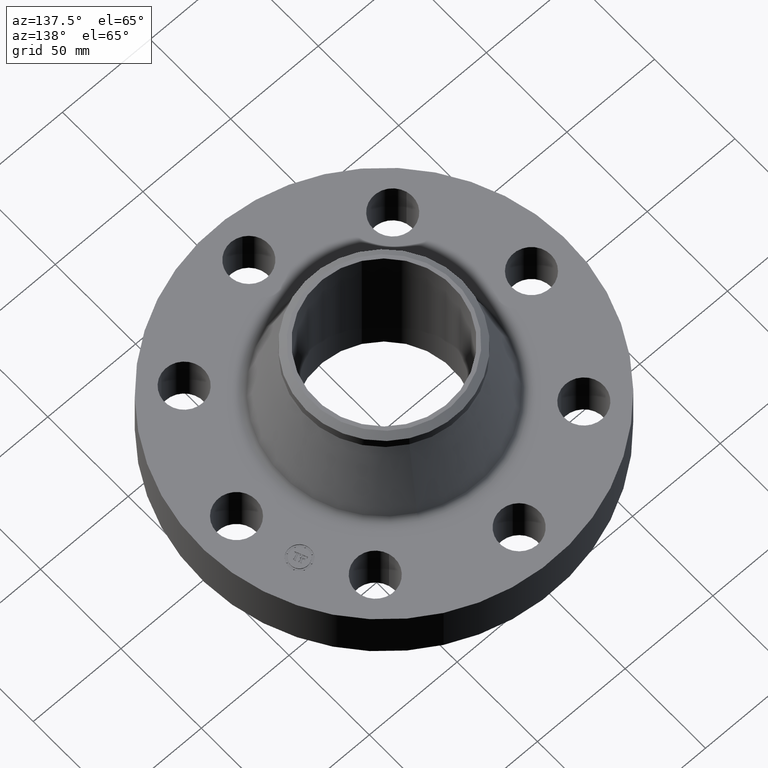
[diagram: clean part render]
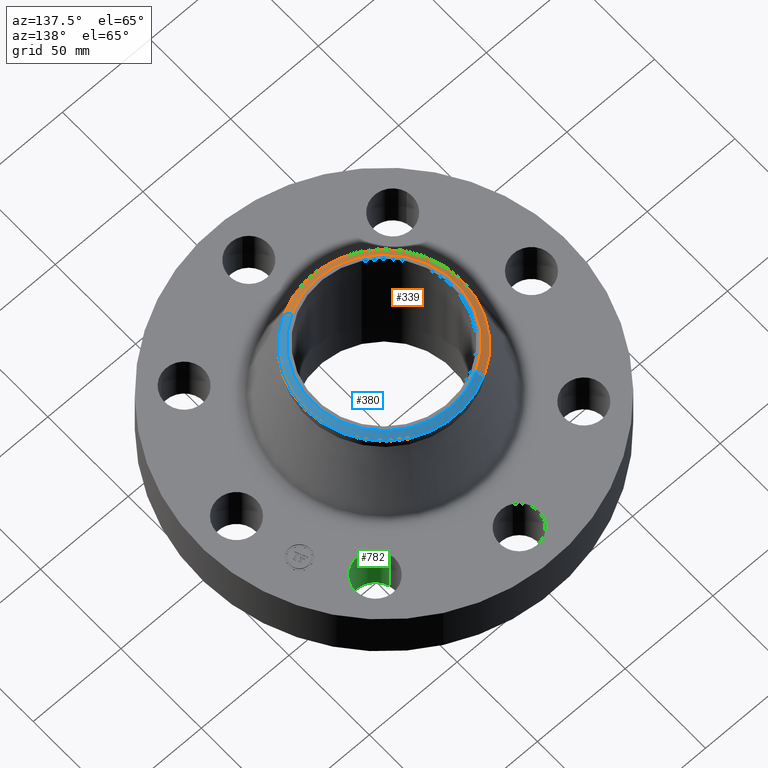
[diagram: same view with three faces highlighted in distinct colors, each labeled with its STEP entity id]
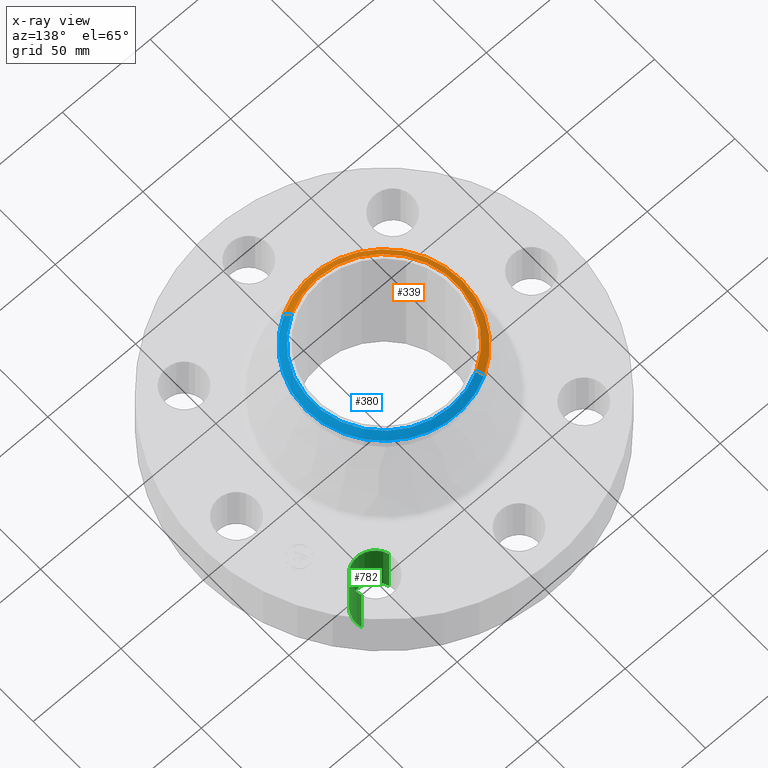
[diagram: x-ray of the same camera — body ghosted, the three highlighted faces saturated]
A machine part, auxiliary view with three faces highlighted in distinct colors.
The next image is the same camera in x-ray (body ghosted, the three faces saturated) — at least one of them is partly hidden behind the body in this view.
Their STEP definitions:

[orange] entity #339 — the highlighted conical surface has half-angle 52.5 deg.
#277=AXIS2_PLACEMENT_3D('Circle Axis2P3D',#275,#276,$) ;
#290=AXIS2_PLACEMENT_3D('Circle Axis2P3D',#288,#289,$) ;
#311=AXIS2_PLACEMENT_3D('Cone Axis2P3D',#308,#309,#310) ;
#322=AXIS2_PLACEMENT_3D('Circle Axis2P3D',#320,#321,$) ;
#258=CARTESIAN_POINT('Vertex',(-0.838994692561,-1.53576948331,3.14467681848)) ;
#272=CARTESIAN_POINT('Vertex',(0.838994692561,-1.53576948331,3.14467681848)) ;
#275=CARTESIAN_POINT('Axis2P3D Location',(0.,0.,3.14467681848)) ;
#288=CARTESIAN_POINT('Axis2P3D Location',(0.,0.,3.14467681848)) ;
#292=CARTESIAN_POINT('Vertex',(-0.838994692561,1.53576948331,3.14467681848)) ;
#308=CARTESIAN_POINT('Axis2P3D Location',(0.,0.,3.25000000001)) ;
#313=CARTESIAN_POINT('Line Origine',(0.806091755596,-1.47554106119,3.19733840925)) ;
#317=CARTESIAN_POINT('Vertex',(0.773188818632,-1.41531263907,3.25000000001)) ;
#320=CARTESIAN_POINT('Axis2P3D Location',(0.,0.,3.25000000001)) ;
#324=CARTESIAN_POINT('Vertex',(-0.773188818632,1.41531263907,3.25000000001)) ;
#327=CARTESIAN_POINT('Line Origine',(-0.806091755596,1.47554106119,3.19733840925)) ;
#276=DIRECTION('Axis2P3D Direction',(0.,0.,-0.0393700787402)) ;
#289=DIRECTION('Axis2P3D Direction',(0.,0.,-0.0393700787402)) ;
#309=DIRECTION('Axis2P3D Direction',(-0.,-0.,-0.0393700787402)) ;
#310=DIRECTION('Axis2P3D XDirection',(-0.0188750212049,0.0345504945626,0.)) ;
#314=DIRECTION('Vector Direction',(0.014974561121,-0.02741075027,-0.023966985394)) ;
#321=DIRECTION('Axis2P3D Direction',(0.,0.,-0.0393700787402)) ;
#328=DIRECTION('Vector Direction',(-0.014974561121,0.02741075027,-0.023966985394)) ;
#315=VECTOR('Line Direction',#314,0.0393700787402) ;
#329=VECTOR('Line Direction',#328,0.0393700787402) ;
#333=ORIENTED_EDGE('',*,*,#319,.F.) ;
#334=ORIENTED_EDGE('',*,*,#326,.F.) ;
#335=ORIENTED_EDGE('',*,*,#331,.T.) ;
#336=ORIENTED_EDGE('',*,*,#294,.T.) ;
#337=ORIENTED_EDGE('',*,*,#279,.F.) ;
#339=ADVANCED_FACE('PartBody',(#338),#312,.T.) ;
#278=CIRCLE('generated circle',#277,1.75000000001) ;
#291=CIRCLE('generated circle',#290,1.75000000001) ;
#323=CIRCLE('generated circle',#322,1.61274015749) ;
#312=CONICAL_SURFACE('Cone',#311,1.61274015749,0.916297857297) ;
#279=EDGE_CURVE('',#273,#259,#278,.T.) ;
#294=EDGE_CURVE('',#293,#259,#291,.F.) ;
#319=EDGE_CURVE('',#318,#273,#316,.T.) ;
#326=EDGE_CURVE('',#325,#318,#323,.F.) ;
#331=EDGE_CURVE('',#325,#293,#330,.T.) ;
#332=EDGE_LOOP('',(#333,#334,#335,#336,#337)) ;
#338=FACE_OUTER_BOUND('',#332,.T.) ;
#316=LINE('Line',#313,#315) ;
#330=LINE('Line',#327,#329) ;
#259=VERTEX_POINT('',#258) ;
#273=VERTEX_POINT('',#272) ;
#293=VERTEX_POINT('',#292) ;
#318=VERTEX_POINT('',#317) ;
#325=VERTEX_POINT('',#324) ;

[blue] entity #380 — the highlighted conical surface has half-angle 52.5 deg.
#270=AXIS2_PLACEMENT_3D('Circle Axis2P3D',#268,#269,$) ;
#297=AXIS2_PLACEMENT_3D('Circle Axis2P3D',#295,#296,$) ;
#311=AXIS2_PLACEMENT_3D('Cone Axis2P3D',#308,#309,#310) ;
#347=AXIS2_PLACEMENT_3D('Circle Axis2P3D',#345,#346,$) ;
#265=CARTESIAN_POINT('Vertex',(0.838994692561,1.53576948331,3.14467681848)) ;
#268=CARTESIAN_POINT('Axis2P3D Location',(0.,0.,3.14467681848)) ;
#272=CARTESIAN_POINT('Vertex',(0.838994692561,-1.53576948331,3.14467681848)) ;
#292=CARTESIAN_POINT('Vertex',(-0.838994692561,1.53576948331,3.14467681848)) ;
#295=CARTESIAN_POINT('Axis2P3D Location',(0.,0.,3.14467681848)) ;
#308=CARTESIAN_POINT('Axis2P3D Location',(0.,0.,3.25000000001)) ;
#313=CARTESIAN_POINT('Line Origine',(0.806091755596,-1.47554106119,3.19733840925)) ;
#317=CARTESIAN_POINT('Vertex',(0.773188818632,-1.41531263907,3.25000000001)) ;
#324=CARTESIAN_POINT('Vertex',(-0.773188818632,1.41531263907,3.25000000001)) ;
#327=CARTESIAN_POINT('Line Origine',(-0.806091755596,1.47554106119,3.19733840925)) ;
#345=CARTESIAN_POINT('Axis2P3D Location',(0.,0.,3.25000000001)) ;
#269=DIRECTION('Axis2P3D Direction',(0.,0.,-0.0393700787402)) ;
#296=DIRECTION('Axis2P3D Direction',(0.,0.,-0.0393700787402)) ;
#309=DIRECTION('Axis2P3D Direction',(-0.,-0.,-0.0393700787402)) ;
#310=DIRECTION('Axis2P3D XDirection',(-0.0188750212049,0.0345504945626,0.)) ;
#314=DIRECTION('Vector Direction',(0.014974561121,-0.02741075027,-0.023966985394)) ;
#328=DIRECTION('Vector Direction',(-0.014974561121,0.02741075027,-0.023966985394)) ;
#346=DIRECTION('Axis2P3D Direction',(0.,0.,-0.0393700787402)) ;
#315=VECTOR('Line Direction',#314,0.0393700787402) ;
#329=VECTOR('Line Direction',#328,0.0393700787402) ;
#374=ORIENTED_EDGE('',*,*,#331,.F.) ;
#375=ORIENTED_EDGE('',*,*,#349,.F.) ;
#376=ORIENTED_EDGE('',*,*,#319,.T.) ;
#377=ORIENTED_EDGE('',*,*,#274,.T.) ;
#378=ORIENTED_EDGE('',*,*,#299,.F.) ;
#380=ADVANCED_FACE('PartBody',(#379),#312,.T.) ;
#271=CIRCLE('generated circle',#270,1.75000000001) ;
#298=CIRCLE('generated circle',#297,1.75000000001) ;
#348=CIRCLE('generated circle',#347,1.61274015749) ;
#312=CONICAL_SURFACE('Cone',#311,1.61274015749,0.916297857297) ;
#274=EDGE_CURVE('',#273,#266,#271,.F.) ;
#299=EDGE_CURVE('',#293,#266,#298,.T.) ;
#319=EDGE_CURVE('',#318,#273,#316,.T.) ;
#331=EDGE_CURVE('',#325,#293,#330,.T.) ;
#349=EDGE_CURVE('',#318,#325,#348,.F.) ;
#373=EDGE_LOOP('',(#374,#375,#376,#377,#378)) ;
#379=FACE_OUTER_BOUND('',#373,.T.) ;
#316=LINE('Line',#313,#315) ;
#330=LINE('Line',#327,#329) ;
#266=VERTEX_POINT('',#265) ;
#273=VERTEX_POINT('',#272) ;
#293=VERTEX_POINT('',#292) ;
#318=VERTEX_POINT('',#317) ;
#325=VERTEX_POINT('',#324) ;

[green] entity #782 — the highlighted cylindrical surface (edge-blend (fillet) strip) has radius 11.176 mm, axis along (0, 0, -1).
#560=AXIS2_PLACEMENT_3D('Circle Axis2P3D',#558,#559,$) ;
#743=AXIS2_PLACEMENT_3D('Cylinder Axis2P3D',#740,#741,#742) ;
#773=AXIS2_PLACEMENT_3D('Circle Axis2P3D',#771,#772,$) ;
#553=CARTESIAN_POINT('Vertex',(1.91832160854,2.21664605203,0.)) ;
#555=CARTESIAN_POINT('Vertex',(2.76272528293,2.46440083944,0.)) ;
#558=CARTESIAN_POINT('Axis2P3D Location',(2.34052344574,2.34052344574,0.)) ;
#740=CARTESIAN_POINT('Axis2P3D Location',(2.34052344574,2.34052344574,1.24606299213)) ;
#745=CARTESIAN_POINT('Line Origine',(1.91832160854,2.21664605203,0.625000000003)) ;
#749=CARTESIAN_POINT('Vertex',(1.91832160854,2.21664605203,1.25000000001)) ;
#752=CARTESIAN_POINT('Line Origine',(2.76272528293,2.46440083944,0.625000000003)) ;
#756=CARTESIAN_POINT('Vertex',(2.76272528293,2.46440083944,1.25000000001)) ;
#771=CARTESIAN_POINT('Axis2P3D Location',(2.34052344574,2.34052344574,1.25000000001)) ;
#559=DIRECTION('Axis2P3D Direction',(0.,0.,-0.0393700787402)) ;
#741=DIRECTION('Axis2P3D Direction',(0.,0.,-0.0393700787402)) ;
#742=DIRECTION('Axis2P3D XDirection',(0.0377775444876,0.0110842335096,0.)) ;
#746=DIRECTION('Vector Direction',(0.,0.,-0.0393700787402)) ;
#753=DIRECTION('Vector Direction',(0.,0.,-0.0393700787402)) ;
#772=DIRECTION('Axis2P3D Direction',(0.,0.,-0.0393700787402)) ;
#747=VECTOR('Line Direction',#746,0.0393700787402) ;
#754=VECTOR('Line Direction',#753,0.0393700787402) ;
#777=ORIENTED_EDGE('',*,*,#758,.F.) ;
#778=ORIENTED_EDGE('',*,*,#562,.T.) ;
#779=ORIENTED_EDGE('',*,*,#751,.T.) ;
#780=ORIENTED_EDGE('',*,*,#775,.F.) ;
#782=ADVANCED_FACE('PartBody',(#781),#744,.F.) ;
#561=CIRCLE('generated circle',#560,0.440000000002) ;
#774=CIRCLE('generated circle',#773,0.440000000002) ;
#744=CYLINDRICAL_SURFACE('generated cylinder',#743,0.440000000002) ;
#562=EDGE_CURVE('',#556,#554,#561,.T.) ;
#751=EDGE_CURVE('',#554,#750,#748,.F.) ;
#758=EDGE_CURVE('',#556,#757,#755,.F.) ;
#775=EDGE_CURVE('',#757,#750,#774,.T.) ;
#776=EDGE_LOOP('',(#777,#778,#779,#780)) ;
#781=FACE_OUTER_BOUND('',#776,.T.) ;
#748=LINE('Line',#745,#747) ;
#755=LINE('Line',#752,#754) ;
#554=VERTEX_POINT('',#553) ;
#556=VERTEX_POINT('',#555) ;
#750=VERTEX_POINT('',#749) ;
#757=VERTEX_POINT('',#756) ;